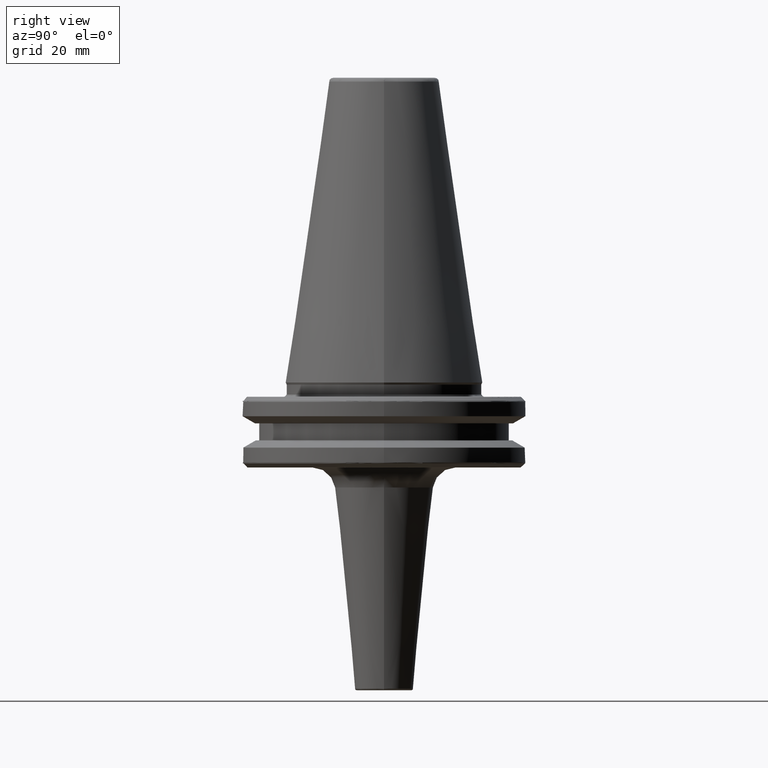
[diagram: clean part render]
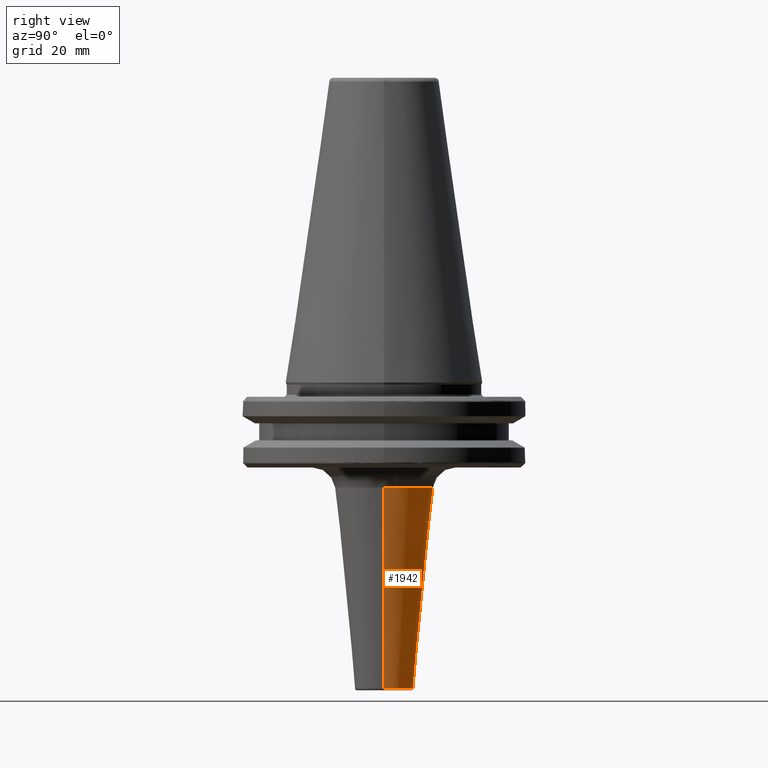
[diagram: same view with one face highlighted and labeled with its STEP entity id]
A machine part, right view. The second image highlights one B-rep face of the part: STEP entity #1942.
In plain terms, the highlighted conical surface has half-angle 5.711 deg.
Its self-contained STEP definition (entity closure, byte-faithful):
#20 = DIRECTION ( 'NONE',  ( 0.0000000000000000000, 0.0000000000000000000, 1.000000000000000000 ) ) ;
#80 = ORIENTED_EDGE ( 'NONE', *, *, #1820, .T. ) ;
#128 = AXIS2_PLACEMENT_3D ( 'NONE', #1794, #853, #2484 ) ;
#141 = CARTESIAN_POINT ( 'NONE',  ( 0.0000000000000000000, 0.0000000000000000000, -23.60248140489502000 ) ) ;
#211 = ORIENTED_EDGE ( 'NONE', *, *, #1128, .T. ) ;
#282 = AXIS2_PLACEMENT_3D ( 'NONE', #141, #522, #1146 ) ;
#454 = CIRCLE ( 'NONE', #282, 11.04975185951049200 ) ;
#515 = VERTEX_POINT ( 'NONE', #606 ) ;
#522 = DIRECTION ( 'NONE',  ( -0.0000000000000000000, -0.0000000000000000000, -1.000000000000000000 ) ) ;
#601 = VERTEX_POINT ( 'NONE', #2415 ) ;
#605 = VERTEX_POINT ( 'NONE', #1674 ) ;
#606 = CARTESIAN_POINT ( 'NONE',  ( 6.536019851232310900, 0.0000000000000000000, -68.73980148759528700 ) ) ;
#767 = DIRECTION ( 'NONE',  ( 1.000000000000000000, 0.0000000000000000000, 0.0000000000000000000 ) ) ;
#850 = LINE ( 'NONE', #1071, #2033 ) ;
#853 = DIRECTION ( 'NONE',  ( 0.0000000000000000000, -0.0000000000000000000, 1.000000000000000000 ) ) ;
#855 = DIRECTION ( 'NONE',  ( -0.09950371902090585100, 1.218569110022099500E-017, 0.9950371902099983700 ) ) ;
#861 = ORIENTED_EDGE ( 'NONE', *, *, #1563, .T. ) ;
#866 = VERTEX_POINT ( 'NONE', #1123 ) ;
#876 = CARTESIAN_POINT ( 'NONE',  ( -11.04975185949541600, 1.353204324610357300E-015, -23.60248140490739400 ) ) ;
#1071 = CARTESIAN_POINT ( 'NONE',  ( 11.04975185949541600, 0.0000000000000000000, -23.60248140490739400 ) ) ;
#1123 = CARTESIAN_POINT ( 'NONE',  ( -6.536019851232310900, 1.076817951804045000E-015, -68.73980148759528700 ) ) ;
#1128 = EDGE_CURVE ( 'NONE', #601, #605, #454, .T. ) ;
#1146 = DIRECTION ( 'NONE',  ( 1.000000000000000000, 0.0000000000000000000, 0.0000000000000000000 ) ) ;
#1298 = AXIS2_PLACEMENT_3D ( 'NONE', #1371, #20, #767 ) ;
#1371 = CARTESIAN_POINT ( 'NONE',  ( 0.0000000000000000000, 0.0000000000000000000, -68.73980148759528700 ) ) ;
#1401 = EDGE_CURVE ( 'NONE', #515, #605, #850, .T. ) ;
#1563 = EDGE_CURVE ( 'NONE', #515, #866, #2501, .T. ) ;
#1566 = EDGE_LOOP ( 'NONE', ( #861, #80, #211, #2543 ) ) ;
#1674 = CARTESIAN_POINT ( 'NONE',  ( 11.04975185949665200, 0.0000000000000000000, -23.60248140489502000 ) ) ;
#1794 = CARTESIAN_POINT ( 'NONE',  ( 0.0000000000000000000, 0.0000000000000000000, -23.60248140490739400 ) ) ;
#1808 = DIRECTION ( 'NONE',  ( 0.09950371902090585100, 0.0000000000000000000, 0.9950371902099983700 ) ) ;
#1820 = EDGE_CURVE ( 'NONE', #866, #601, #2652, .T. ) ;
#1942 = ADVANCED_FACE ( 'NONE', ( #2397 ), #2835, .T. ) ;
#2033 = VECTOR ( 'NONE', #1808, 1000.000000000000100 ) ;
#2397 = FACE_OUTER_BOUND ( 'NONE', #1566, .T. ) ;
#2415 = CARTESIAN_POINT ( 'NONE',  ( -11.04975185949665200, 1.353204324610509000E-015, -23.60248140489502000 ) ) ;
#2484 = DIRECTION ( 'NONE',  ( 1.000000000000000000, 0.0000000000000000000, 0.0000000000000000000 ) ) ;
#2501 = CIRCLE ( 'NONE', #1298, 6.536019851232310900 ) ;
#2543 = ORIENTED_EDGE ( 'NONE', *, *, #1401, .F. ) ;
#2652 = LINE ( 'NONE', #876, #2703 ) ;
#2703 = VECTOR ( 'NONE', #855, 1000.000000000000100 ) ;
#2835 = CONICAL_SURFACE ( 'NONE', #128, 11.04975185949541600, 0.09966865249106851600 ) ;